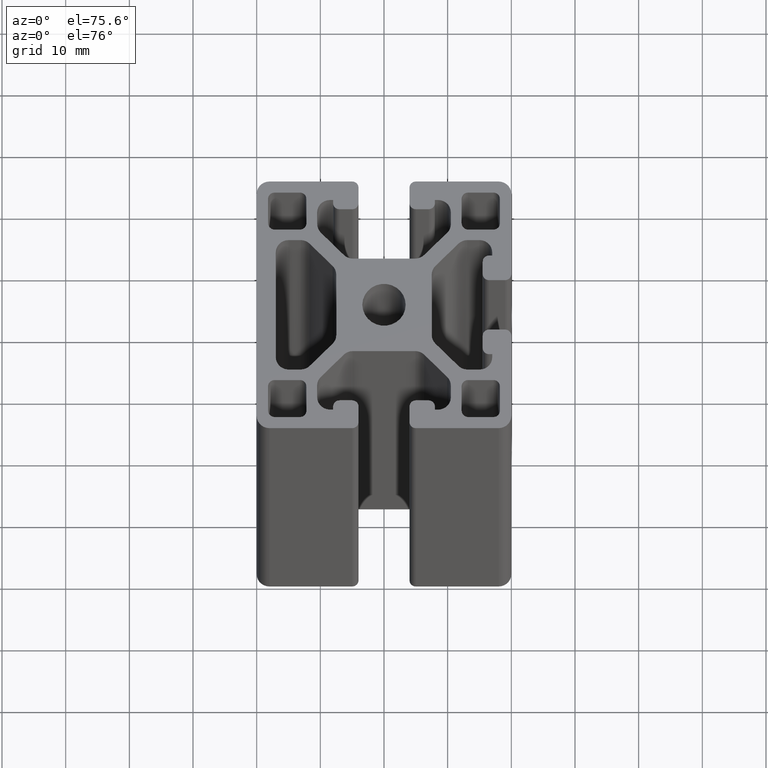
[diagram: clean part render]
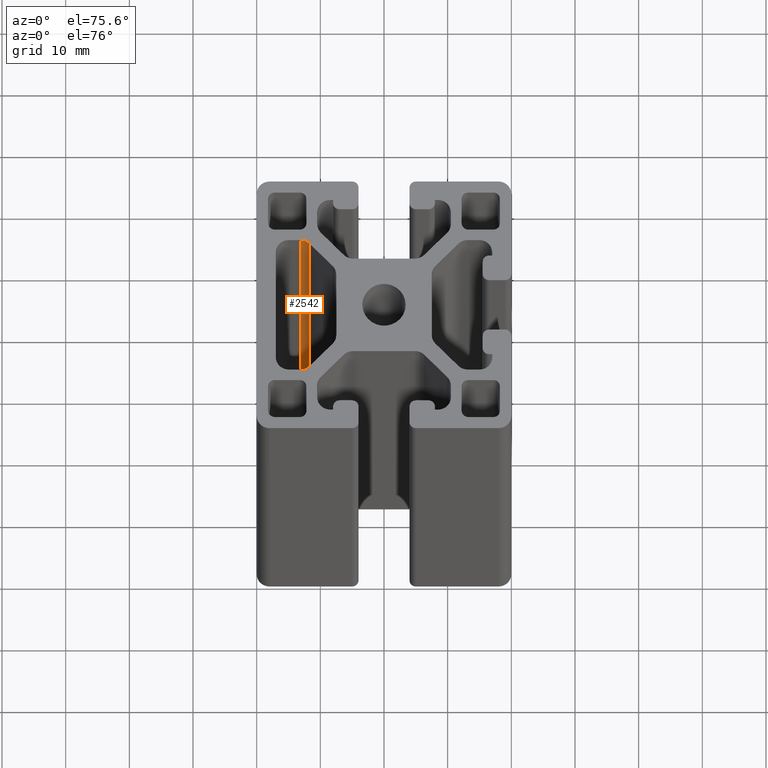
[diagram: same view with one face highlighted and labeled with its STEP entity id]
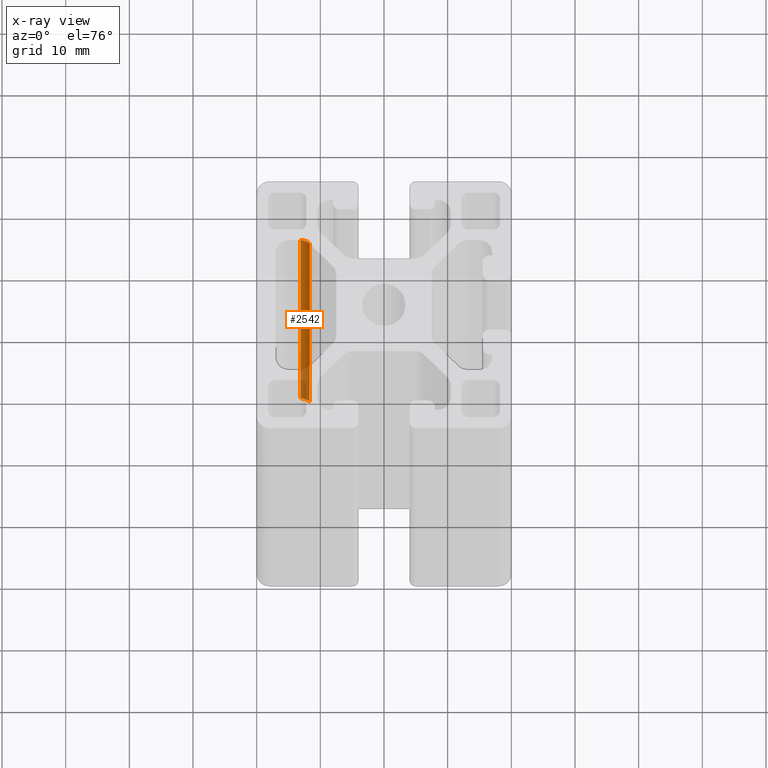
[diagram: x-ray of the same camera — body ghosted, the highlighted face saturated]
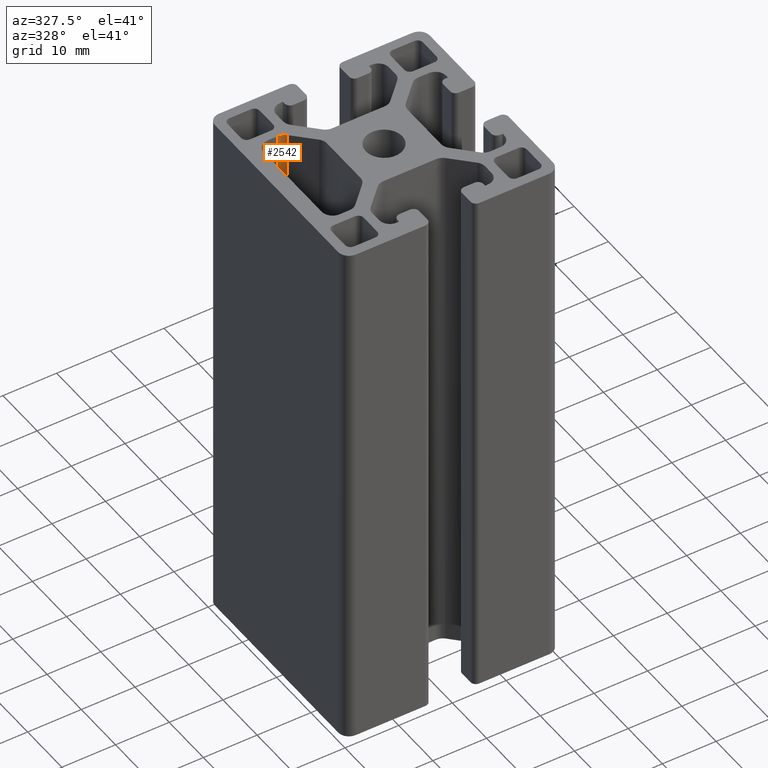
[diagram: same view with one face highlighted and labeled with its STEP entity id]
A machine part, auxiliary view. The second image highlights one B-rep face of the part: STEP entity #2542.
The next image is the same camera in x-ray: the body ghosted, the highlighted face saturated — about 20% of this face is hidden behind the body in this view.
A second angle (auxiliary view) of the same face is appended — the face is thin or edge-on in the first view.
In plain terms, the highlighted cylindrical surface (edge-blend (fillet) strip) has radius 2 mm, axis along (0, 0, 1).
Its self-contained STEP definition (entity closure, byte-faithful):
#26=LINE('',#3754,#292);
#27=LINE('',#3760,#293);
#292=VECTOR('',#2967,100.);
#293=VECTOR('',#2974,100.);
#636=FACE_OUTER_BOUND('',#770,.T.);
#770=EDGE_LOOP('',(#1711,#1712,#1713,#1714));
#915=CIRCLE('',#2684,2.00000000000001);
#916=CIRCLE('',#2685,2.00000000000001);
#1047=VERTEX_POINT('',#3750);
#1048=VERTEX_POINT('',#3752);
#1049=VERTEX_POINT('',#3756);
#1050=VERTEX_POINT('',#3758);
#1314=EDGE_CURVE('',#1048,#1047,#26,.T.);
#1315=EDGE_CURVE('',#1047,#1049,#915,.T.);
#1316=EDGE_CURVE('',#1050,#1048,#916,.T.);
#1317=EDGE_CURVE('',#1050,#1049,#27,.T.);
#1711=ORIENTED_EDGE('',*,*,#1315,.F.);
#1712=ORIENTED_EDGE('',*,*,#1314,.F.);
#1713=ORIENTED_EDGE('',*,*,#1316,.F.);
#1714=ORIENTED_EDGE('',*,*,#1317,.T.);
#2476=CYLINDRICAL_SURFACE('',#2683,2.00000000000001);
#2542=ADVANCED_FACE('',(#636),#2476,.F.);
#2683=AXIS2_PLACEMENT_3D('',#3755,#2968,#2969);
#2684=AXIS2_PLACEMENT_3D('',#3757,#2970,#2971);
#2685=AXIS2_PLACEMENT_3D('',#3759,#2972,#2973);
#2967=DIRECTION('',(0.,0.,1.));
#2968=DIRECTION('center_axis',(0.,0.,1.));
#2969=DIRECTION('ref_axis',(-0.707106781186543,-0.707106781186552,0.));
#2970=DIRECTION('center_axis',(0.,0.,-1.));
#2971=DIRECTION('ref_axis',(-0.707106781186543,-0.707106781186552,0.));
#2972=DIRECTION('center_axis',(0.,0.,1.));
#2973=DIRECTION('ref_axis',(-0.707106781186543,-0.707106781186552,0.));
#2974=DIRECTION('',(0.,0.,1.));
#3750=CARTESIAN_POINT('',(-13.0961940777126,10.5,100.));
#3752=CARTESIAN_POINT('',(-13.0961940777126,10.5,0.));
#3754=CARTESIAN_POINT('',(-13.0961940777126,10.5,0.));
#3755=CARTESIAN_POINT('Origin',(-13.0961940777126,8.49999999999999,0.));
#3756=CARTESIAN_POINT('',(-11.6819805153395,9.9142135623731,100.));
#3757=CARTESIAN_POINT('Origin',(-13.0961940777126,8.49999999999999,100.));
#3758=CARTESIAN_POINT('',(-11.6819805153395,9.9142135623731,0.));
#3759=CARTESIAN_POINT('Origin',(-13.0961940777126,8.49999999999999,0.));
#3760=CARTESIAN_POINT('',(-11.6819805153395,9.9142135623731,0.));